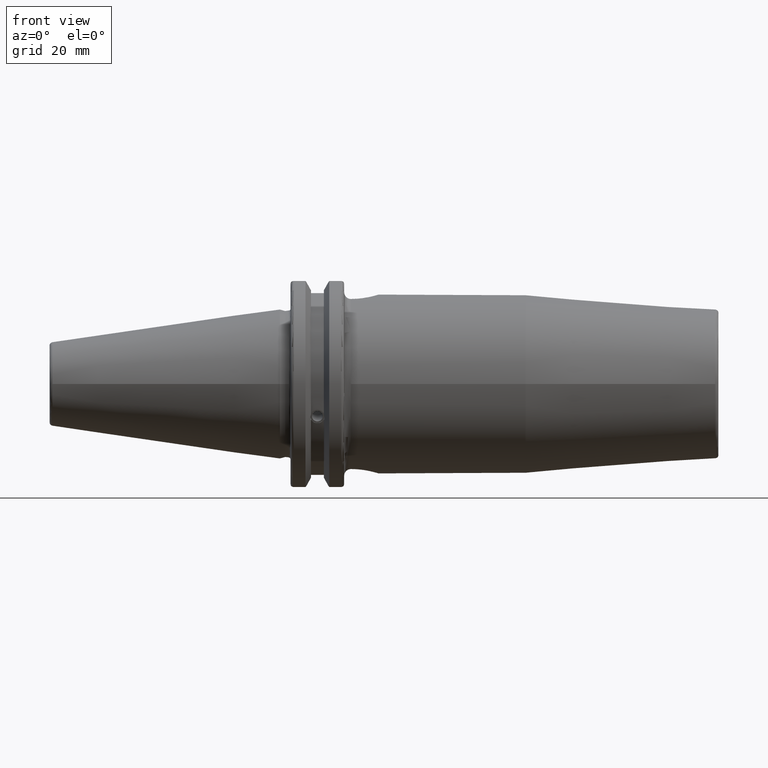
[diagram: clean part render]
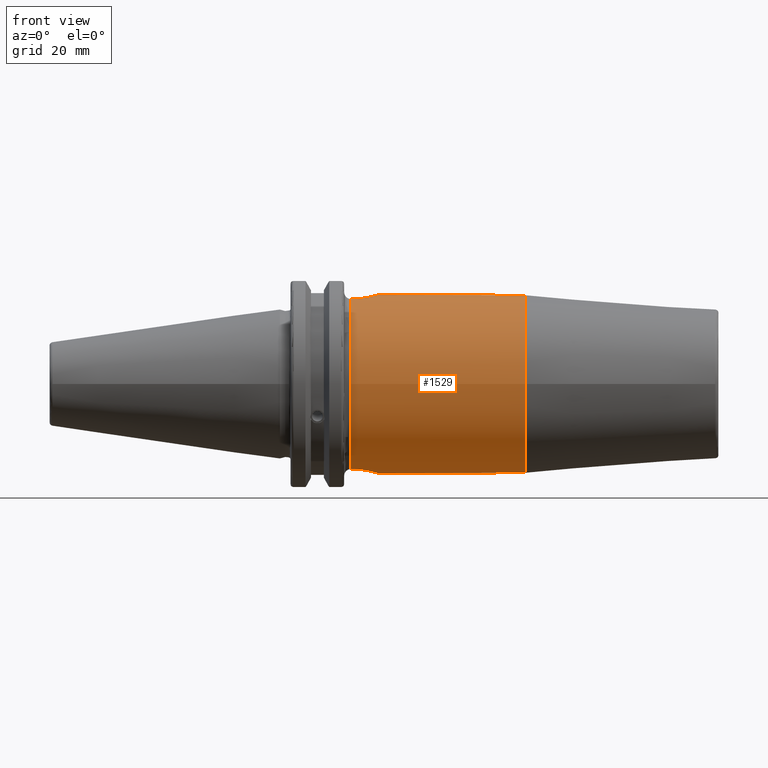
[diagram: same view with one face highlighted and labeled with its STEP entity id]
A machine part, front view. The second image highlights one B-rep face of the part: STEP entity #1529.
In plain terms, the highlighted cylindrical surface (bore or boss wall) has radius 26.5 mm, axis along (1, 0, 0).
Its self-contained STEP definition (entity closure, byte-faithful):
#127=FACE_OUTER_BOUND('',#218,.T.);
#218=EDGE_LOOP('',(#1019,#1020,#1021,#1022,#1023,#1024,#1025,#1026));
#326=CIRCLE('',#1645,26.5);
#327=CIRCLE('',#1646,26.5);
#328=CIRCLE('',#1647,26.5);
#329=CIRCLE('',#1648,26.5);
#405=LINE('',#2330,#493);
#493=VECTOR('',#1843,26.5);
#579=B_SPLINE_CURVE_WITH_KNOTS('',3,(#2303,#2304,#2305,#2306,#2307,#2308,
#2309,#2310,#2311,#2312,#2313,#2314,#2315,#2316,#2317,#2318,#2319,#2320),
 .UNSPECIFIED.,.F.,.F.,(4,2,2,2,2,2,2,2,4),(-2.48572278360632,-2.17495500968227,
-1.86418723575821,-1.55352431378069,-1.24286139180316,-0.932198469825637,
-0.621535547848111,-0.310767773924056,0.),.UNSPECIFIED.);
#580=B_SPLINE_CURVE_WITH_KNOTS('',3,(#2334,#2335,#2336,#2337,#2338,#2339,
#2340,#2341,#2342,#2343,#2344,#2345,#2346,#2347,#2348,#2349,#2350,#2351),
 .UNSPECIFIED.,.F.,.F.,(4,2,2,2,2,2,2,2,4),(-2.48572278360632,-2.17495500968227,
-1.86418723575821,-1.55352431378069,-1.24286139180316,-0.932198469825637,
-0.621535547848111,-0.310767773924056,0.),.UNSPECIFIED.);
#617=VERTEX_POINT('',#2301);
#618=VERTEX_POINT('',#2302);
#621=VERTEX_POINT('',#2327);
#622=VERTEX_POINT('',#2329);
#623=VERTEX_POINT('',#2331);
#624=VERTEX_POINT('',#2333);
#775=EDGE_CURVE('',#617,#618,#579,.T.);
#779=EDGE_CURVE('',#621,#621,#326,.T.);
#780=EDGE_CURVE('',#621,#622,#405,.T.);
#781=EDGE_CURVE('',#623,#622,#327,.T.);
#782=EDGE_CURVE('',#623,#624,#580,.T.);
#783=EDGE_CURVE('',#617,#624,#328,.T.);
#784=EDGE_CURVE('',#622,#618,#329,.T.);
#1019=ORIENTED_EDGE('',*,*,#779,.F.);
#1020=ORIENTED_EDGE('',*,*,#780,.T.);
#1021=ORIENTED_EDGE('',*,*,#781,.F.);
#1022=ORIENTED_EDGE('',*,*,#782,.T.);
#1023=ORIENTED_EDGE('',*,*,#783,.F.);
#1024=ORIENTED_EDGE('',*,*,#775,.T.);
#1025=ORIENTED_EDGE('',*,*,#784,.F.);
#1026=ORIENTED_EDGE('',*,*,#780,.F.);
#1496=CYLINDRICAL_SURFACE('',#1644,26.5);
#1529=ADVANCED_FACE('',(#127),#1496,.T.);
#1644=AXIS2_PLACEMENT_3D('',#2326,#1839,#1840);
#1645=AXIS2_PLACEMENT_3D('',#2328,#1841,#1842);
#1646=AXIS2_PLACEMENT_3D('',#2332,#1844,#1845);
#1647=AXIS2_PLACEMENT_3D('',#2352,#1846,#1847);
#1648=AXIS2_PLACEMENT_3D('',#2353,#1848,#1849);
#1839=DIRECTION('center_axis',(1.,0.,0.));
#1840=DIRECTION('ref_axis',(0.,1.,0.));
#1841=DIRECTION('center_axis',(1.,0.,0.));
#1842=DIRECTION('ref_axis',(0.,0.,-1.));
#1843=DIRECTION('',(-1.,0.,0.));
#1844=DIRECTION('center_axis',(-1.,0.,0.));
#1845=DIRECTION('ref_axis',(0.,-0.999990043367962,0.00446241693951007));
#1846=DIRECTION('center_axis',(-1.,0.,0.));
#1847=DIRECTION('ref_axis',(0.,0.999990043367962,0.00446241693951042));
#1848=DIRECTION('center_axis',(-1.,0.,0.));
#1849=DIRECTION('ref_axis',(0.,-0.999990043367962,0.00446241693951007));
#2301=CARTESIAN_POINT('',(21.05,8.19,25.2026566060009));
#2302=CARTESIAN_POINT('',(21.05,-8.19,25.2026566060009));
#2303=CARTESIAN_POINT('Ctrl Pts',(21.05,8.19,25.2026566060009));
#2304=CARTESIAN_POINT('Ctrl Pts',(22.0858925797469,8.19,25.2026566060009));
#2305=CARTESIAN_POINT('Ctrl Pts',(23.185789313971,7.98158150614079,25.2732152310668));
#2306=CARTESIAN_POINT('Ctrl Pts',(25.2013848498512,7.14375621021404,25.5226916804778));
#2307=CARTESIAN_POINT('Ctrl Pts',(26.1177328112315,6.51467626460416,25.6974445279071));
#2308=CARTESIAN_POINT('Ctrl Pts',(27.5644321678053,5.06797690803034,26.0214315769062));
#2309=CARTESIAN_POINT('Ctrl Pts',(28.1937008512145,4.151530267088,26.1924668082006));
#2310=CARTESIAN_POINT('Ctrl Pts',(29.0316658503806,2.13557416518285,26.4333093652462));
#2311=CARTESIAN_POINT('Ctrl Pts',(29.24,1.03554307325841,26.5));
#2312=CARTESIAN_POINT('Ctrl Pts',(29.24,-1.03554307325842,26.5));
#2313=CARTESIAN_POINT('Ctrl Pts',(29.0316658503806,-2.13557416518286,26.4333093652462));
#2314=CARTESIAN_POINT('Ctrl Pts',(28.1937008512145,-4.151530267088,26.1924668082006));
#2315=CARTESIAN_POINT('Ctrl Pts',(27.5644321678053,-5.06797690803034,26.0214315769062));
#2316=CARTESIAN_POINT('Ctrl Pts',(26.1177328112315,-6.51467626460416,25.6974445279071));
#2317=CARTESIAN_POINT('Ctrl Pts',(25.2013848498512,-7.14375621021404,25.5226916804778));
#2318=CARTESIAN_POINT('Ctrl Pts',(23.185789313971,-7.98158150614079,25.2732152310668));
#2319=CARTESIAN_POINT('Ctrl Pts',(22.0858925797469,-8.19,25.2026566060009));
#2320=CARTESIAN_POINT('Ctrl Pts',(21.05,-8.19,25.2026566060009));
#2326=CARTESIAN_POINT('Origin',(45.9360393436069,0.,0.));
#2327=CARTESIAN_POINT('',(72.8220786872138,-26.5,-3.24531401774049E-15));
#2328=CARTESIAN_POINT('Origin',(72.8220786872138,0.,0.));
#2329=CARTESIAN_POINT('',(21.05,-26.5,-3.24531401774049E-15));
#2330=CARTESIAN_POINT('',(45.9360393436069,-26.5,-3.24531401774049E-15));
#2331=CARTESIAN_POINT('',(21.05,-8.19,-25.2026566060009));
#2332=CARTESIAN_POINT('Origin',(21.05,0.,0.));
#2333=CARTESIAN_POINT('',(21.05,8.19,-25.2026566060009));
#2334=CARTESIAN_POINT('Ctrl Pts',(21.05,-8.19,-25.2026566060009));
#2335=CARTESIAN_POINT('Ctrl Pts',(22.0858925797469,-8.19,-25.2026566060009));
#2336=CARTESIAN_POINT('Ctrl Pts',(23.185789313971,-7.98158150614079,-25.2732152310668));
#2337=CARTESIAN_POINT('Ctrl Pts',(25.2013848498512,-7.14375621021404,-25.5226916804778));
#2338=CARTESIAN_POINT('Ctrl Pts',(26.1177328112315,-6.51467626460416,-25.6974445279071));
#2339=CARTESIAN_POINT('Ctrl Pts',(27.5644321678053,-5.06797690803034,-26.0214315769062));
#2340=CARTESIAN_POINT('Ctrl Pts',(28.1937008512145,-4.151530267088,-26.1924668082006));
#2341=CARTESIAN_POINT('Ctrl Pts',(29.0316658503806,-2.13557416518286,-26.4333093652462));
#2342=CARTESIAN_POINT('Ctrl Pts',(29.24,-1.03554307325842,-26.5));
#2343=CARTESIAN_POINT('Ctrl Pts',(29.24,1.03554307325842,-26.5));
#2344=CARTESIAN_POINT('Ctrl Pts',(29.0316658503806,2.13557416518286,-26.4333093652462));
#2345=CARTESIAN_POINT('Ctrl Pts',(28.1937008512145,4.151530267088,-26.1924668082006));
#2346=CARTESIAN_POINT('Ctrl Pts',(27.5644321678053,5.06797690803034,-26.0214315769062));
#2347=CARTESIAN_POINT('Ctrl Pts',(26.1177328112315,6.51467626460416,-25.6974445279071));
#2348=CARTESIAN_POINT('Ctrl Pts',(25.2013848498512,7.14375621021404,-25.5226916804778));
#2349=CARTESIAN_POINT('Ctrl Pts',(23.185789313971,7.98158150614079,-25.2732152310668));
#2350=CARTESIAN_POINT('Ctrl Pts',(22.0858925797469,8.19,-25.2026566060009));
#2351=CARTESIAN_POINT('Ctrl Pts',(21.05,8.19,-25.2026566060009));
#2352=CARTESIAN_POINT('Origin',(21.05,0.,0.));
#2353=CARTESIAN_POINT('Origin',(21.05,0.,0.));